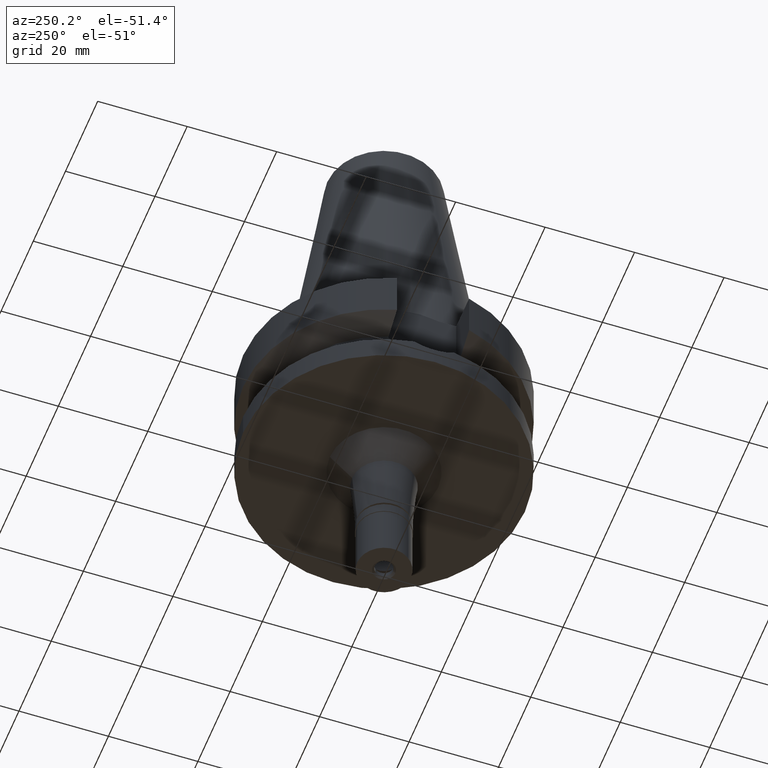
[diagram: clean part render]
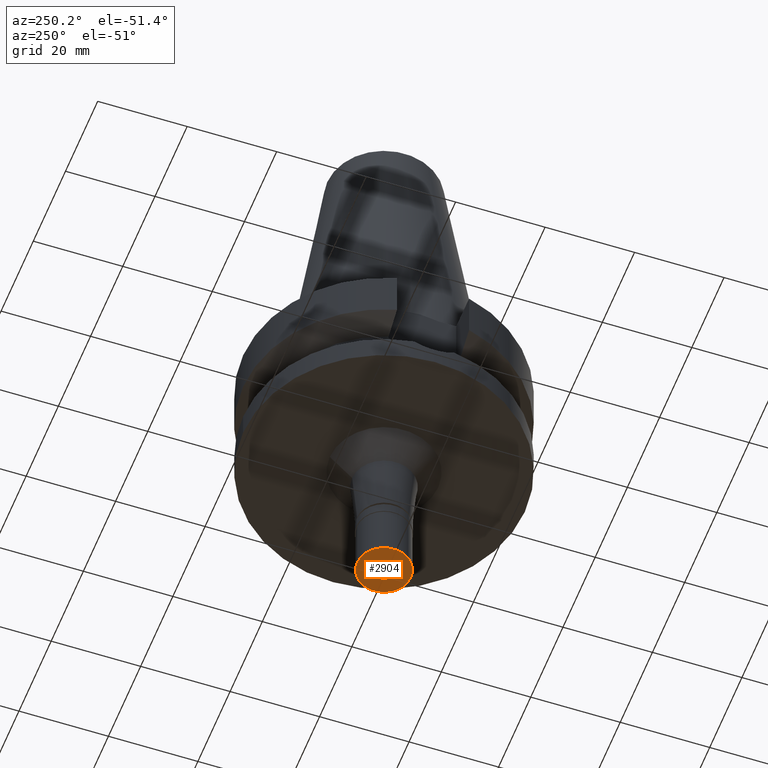
[diagram: same view with one face highlighted and labeled with its STEP entity id]
A machine part, auxiliary view. The second image highlights one B-rep face of the part: STEP entity #2904.
In plain terms, the highlighted planar face has unit normal (0, 0, 1).
Its self-contained STEP definition (entity closure, byte-faithful):
#15 = DIRECTION ( 'NONE',  ( 0.0000000000000000000, 0.0000000000000000000, -1.000000000000000000 ) ) ;
#126 = AXIS2_PLACEMENT_3D ( 'NONE', #2870, #1032, #830 ) ;
#267 = DIRECTION ( 'NONE',  ( 0.0000000000000000000, 0.0000000000000000000, 1.000000000000000000 ) ) ;
#275 = CARTESIAN_POINT ( 'NONE',  ( 0.0000000000000000000, -2.550000000000000266, -14.50000000000000000 ) ) ;
#280 = CIRCLE ( 'NONE', #1950, 6.000000000000000000 ) ;
#330 = AXIS2_PLACEMENT_3D ( 'NONE', #2045, #15, #2957 ) ;
#373 = PLANE ( 'NONE',  #126 ) ;
#479 = AXIS2_PLACEMENT_3D ( 'NONE', #893, #1339, #2952 ) ;
#549 = CIRCLE ( 'NONE', #330, 2.550000000000000266 ) ;
#609 = EDGE_CURVE ( 'NONE', #909, #2692, #1910, .T. ) ;
#610 = AXIS2_PLACEMENT_3D ( 'NONE', #883, #1092, #1748 ) ;
#830 = DIRECTION ( 'NONE',  ( 1.000000000000000000, 0.0000000000000000000, 0.0000000000000000000 ) ) ;
#883 = CARTESIAN_POINT ( 'NONE',  ( 0.0000000000000000000, 0.0000000000000000000, -14.50000000000000000 ) ) ;
#893 = CARTESIAN_POINT ( 'NONE',  ( 0.0000000000000000000, 0.0000000000000000000, -14.50000000000000000 ) ) ;
#909 = VERTEX_POINT ( 'NONE', #1545 ) ;
#945 = DIRECTION ( 'NONE',  ( 0.0000000000000000000, 1.000000000000000000, 0.0000000000000000000 ) ) ;
#956 = CARTESIAN_POINT ( 'NONE',  ( 0.0000000000000000000, 2.550000000000000266, -14.50000000000000000 ) ) ;
#976 = ORIENTED_EDGE ( 'NONE', *, *, #609, .F. ) ;
#1032 = DIRECTION ( 'NONE',  ( 0.0000000000000000000, 0.0000000000000000000, 1.000000000000000000 ) ) ;
#1092 = DIRECTION ( 'NONE',  ( 0.0000000000000000000, 0.0000000000000000000, 1.000000000000000000 ) ) ;
#1110 = CIRCLE ( 'NONE', #479, 2.550000000000000266 ) ;
#1339 = DIRECTION ( 'NONE',  ( 0.0000000000000000000, 0.0000000000000000000, -1.000000000000000000 ) ) ;
#1481 = FACE_BOUND ( 'NONE', #2896, .T. ) ;
#1545 = CARTESIAN_POINT ( 'NONE',  ( 0.0000000000000000000, -6.000000000000000000, -14.50000000000000000 ) ) ;
#1584 = EDGE_CURVE ( 'NONE', #2838, #2268, #1110, .T. ) ;
#1748 = DIRECTION ( 'NONE',  ( 0.0000000000000000000, -1.000000000000000000, 0.0000000000000000000 ) ) ;
#1910 = CIRCLE ( 'NONE', #610, 6.000000000000000000 ) ;
#1950 = AXIS2_PLACEMENT_3D ( 'NONE', #2557, #267, #945 ) ;
#2039 = EDGE_LOOP ( 'NONE', ( #2696, #976 ) ) ;
#2045 = CARTESIAN_POINT ( 'NONE',  ( 0.0000000000000000000, 0.0000000000000000000, -14.50000000000000000 ) ) ;
#2258 = ORIENTED_EDGE ( 'NONE', *, *, #2509, .F. ) ;
#2268 = VERTEX_POINT ( 'NONE', #275 ) ;
#2472 = ORIENTED_EDGE ( 'NONE', *, *, #1584, .F. ) ;
#2509 = EDGE_CURVE ( 'NONE', #2268, #2838, #549, .T. ) ;
#2557 = CARTESIAN_POINT ( 'NONE',  ( 0.0000000000000000000, 0.0000000000000000000, -14.50000000000000000 ) ) ;
#2587 = CARTESIAN_POINT ( 'NONE',  ( 0.0000000000000000000, 6.000000000000000000, -14.50000000000000000 ) ) ;
#2616 = FACE_OUTER_BOUND ( 'NONE', #2039, .T. ) ;
#2692 = VERTEX_POINT ( 'NONE', #2587 ) ;
#2696 = ORIENTED_EDGE ( 'NONE', *, *, #2878, .F. ) ;
#2838 = VERTEX_POINT ( 'NONE', #956 ) ;
#2870 = CARTESIAN_POINT ( 'NONE',  ( 0.0000000000000000000, 0.0000000000000000000, -14.50000000000000000 ) ) ;
#2878 = EDGE_CURVE ( 'NONE', #2692, #909, #280, .T. ) ;
#2896 = EDGE_LOOP ( 'NONE', ( #2472, #2258 ) ) ;
#2904 = ADVANCED_FACE ( 'NONE', ( #2616, #1481 ), #373, .F. ) ;
#2952 = DIRECTION ( 'NONE',  ( 0.0000000000000000000, 1.000000000000000000, 0.0000000000000000000 ) ) ;
#2957 = DIRECTION ( 'NONE',  ( 0.0000000000000000000, -1.000000000000000000, 0.0000000000000000000 ) ) ;